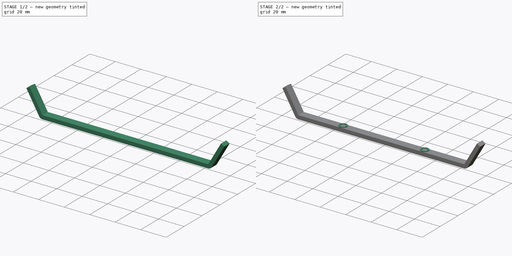
[diagram: build sequence overview — one tinted view per stage of 2, left to right]
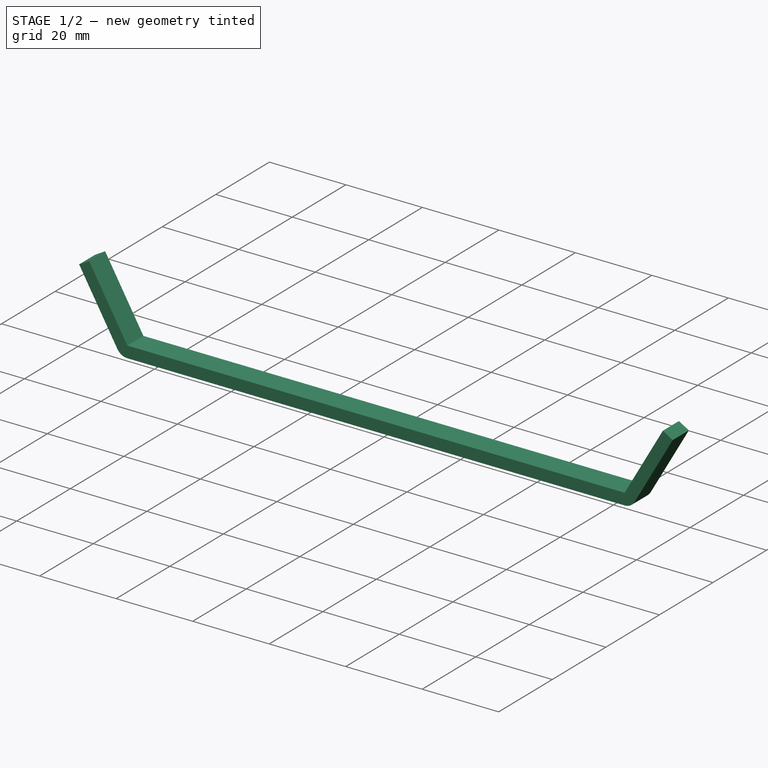
[diagram: stage 1 of 2 — iso view after this stage's code; geometry added in this stage tinted green]
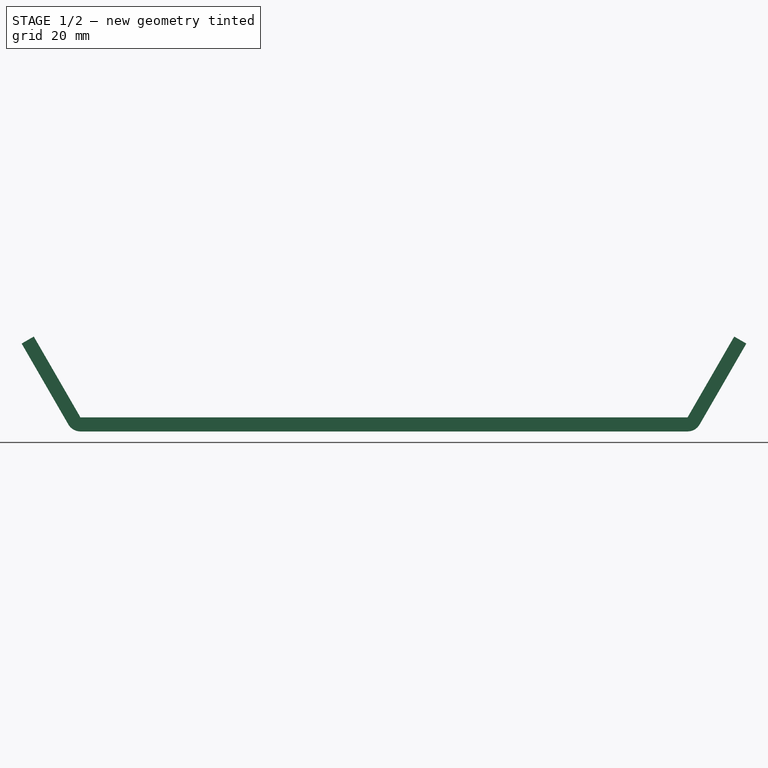
[diagram: stage 1 of 2 — front view after this stage's code; geometry added in this stage tinted green]
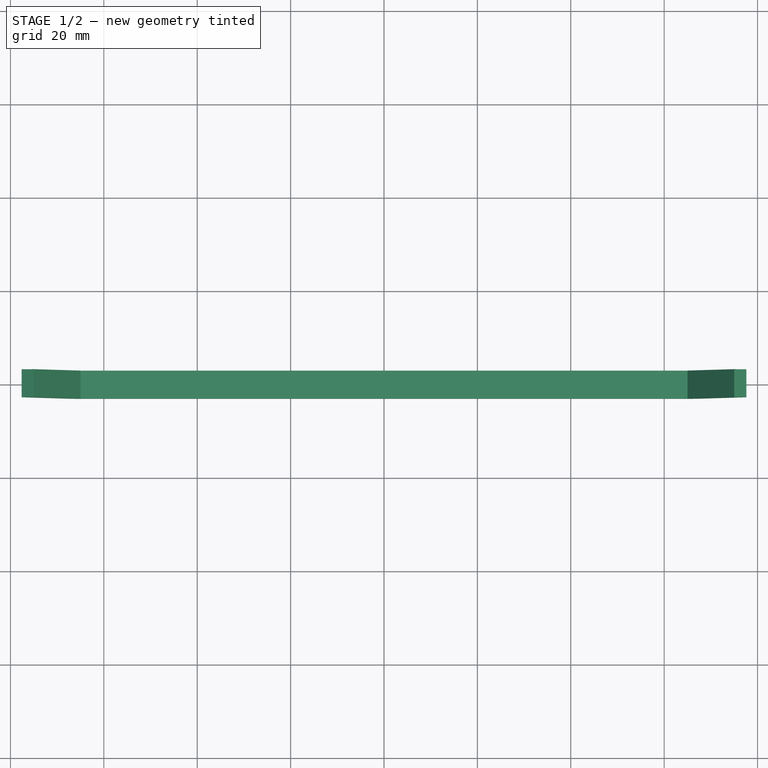
[diagram: stage 1 of 2 — top view after this stage's code; geometry added in this stage tinted green]
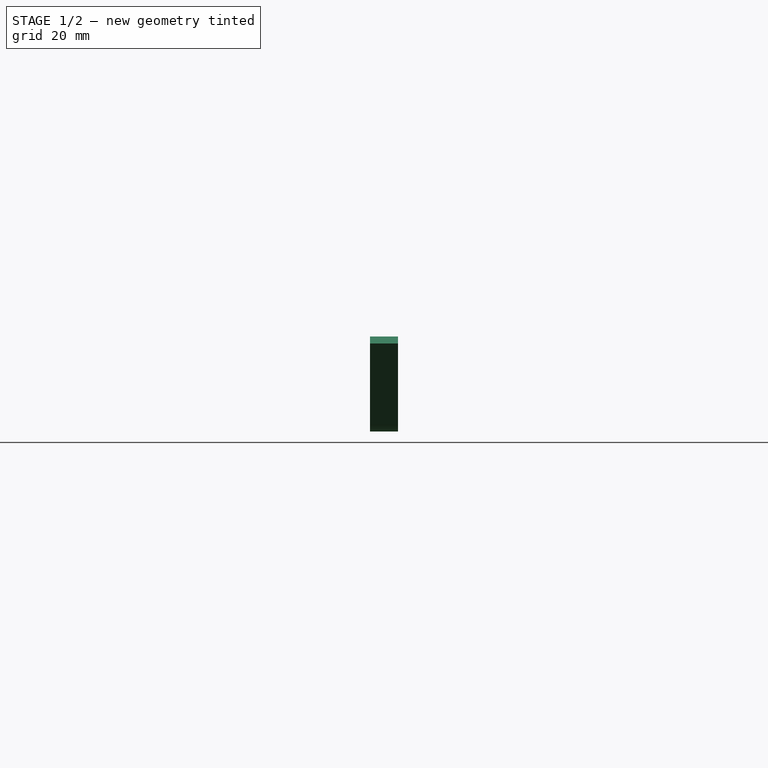
[diagram: stage 1 of 2 — right view after this stage's code; geometry added in this stage tinted green]
FCSTD DOCUMENT  (FreeCAD 0.16R6707 (Git))
Label: FrontBumper
License: All rights reserved
LicenseURL: http://en.wikipedia.org/wiki/All_rights_reserved
objects: Sketcher::SketchObject×2, PartDesign::Pad×2
note: 6 computed .brp shape members not serialized (recipe doc carries the construction recipe); baked Part::Feature solids carry a one-line shape summary decoded from their .brp

FEATURE [Sketcher::SketchObject] Sketch
  Placement = pos=(0,0,0) rot=(-1,0,0;4.71239rad)
  sketch-geometry (10):
    g0: LineSegment StartX=-65 StartY=0 StartZ=0 EndX=65 EndY=0 EndZ=0
    g1: LineSegment StartX=-65 StartY=3 StartZ=0 EndX=65 EndY=3 EndZ=0
    g2: LineSegment StartX=-77.5981 StartY=18.8205 StartZ=0 EndX=-75 EndY=20.3205 EndZ=0
    g3: LineSegment StartX=-75 StartY=20.3205 StartZ=0 EndX=-65 EndY=3 EndZ=0
    g4: LineSegment StartX=-77.5981 StartY=18.8205 StartZ=0 EndX=-67.5981 EndY=1.50002 EndZ=0
    g5: ArcOfCircle CenterX=-65 CenterY=3 CenterZ=0 NormalX=0 NormalY=0 NormalZ=1 Radius=3 StartAngle=3.66518 EndAngle=4.71239
    g6: ArcOfCircle CenterX=65 CenterY=3 CenterZ=0 NormalX=0 NormalY=0 NormalZ=1 Radius=3 StartAngle=4.71239 EndAngle=5.75958
    g7: LineSegment StartX=77.5981 StartY=18.8205 StartZ=0 EndX=67.5981 EndY=1.49999 EndZ=0
    g8: LineSegment StartX=75 StartY=20.3205 StartZ=0 EndX=65 EndY=3 EndZ=0
    g9: LineSegment StartX=77.5981 StartY=18.8205 StartZ=0 EndX=75 EndY=20.3205 EndZ=0
  constraints (30):
    c: Horizontal(g0)
    c: Horizontal(g1)
    c: PointOnObject(g0,g-1)
    c: DistanceY(g0,g1) = 3
    c: Equal(g0,g1)
    c: Symmetric(g0,g0,g-2)
    c: Symmetric(g1,g1,g-2)
    c: Distance(g1) = 130
    c: Coincident(g4,g2)
    c: Coincident(g3,g2)
    c: Perpendicular(g2,g3)
    c: Perpendicular(g2,g4)
    c: Coincident(g3,g1)
    c: Coincident(g5,g1)
    c: Coincident(g5,g0)
    c: Coincident(g5,g4)
    c: Tangent(g5,g4)
    c: Angle(g1,g3) = 2.0944
    c: Distance(g3) = 20
    c: Coincident(g7,g9)
    c: Coincident(g8,g9)
    c: Perpendicular(g9,g8)
    c: Perpendicular(g9,g7)
    c: Coincident(g6,g7)
    c: Tangent(g6,g7)
    c: Distance(g8) = 20
    c: Coincident(g6,g0)
    c: Coincident(g6,g1)
    c: Coincident(g8,g1)
    c: Angle(g8,g1) = 2.0944
FEATURE [PartDesign::Pad] Pad
  Length = 6
  Length2 = 100
  Midplane = true
  Placement = pos=(0,0,0) rot=(-1,0,0;4.71239rad)
  Sketch = -> Sketch
  Type = 0
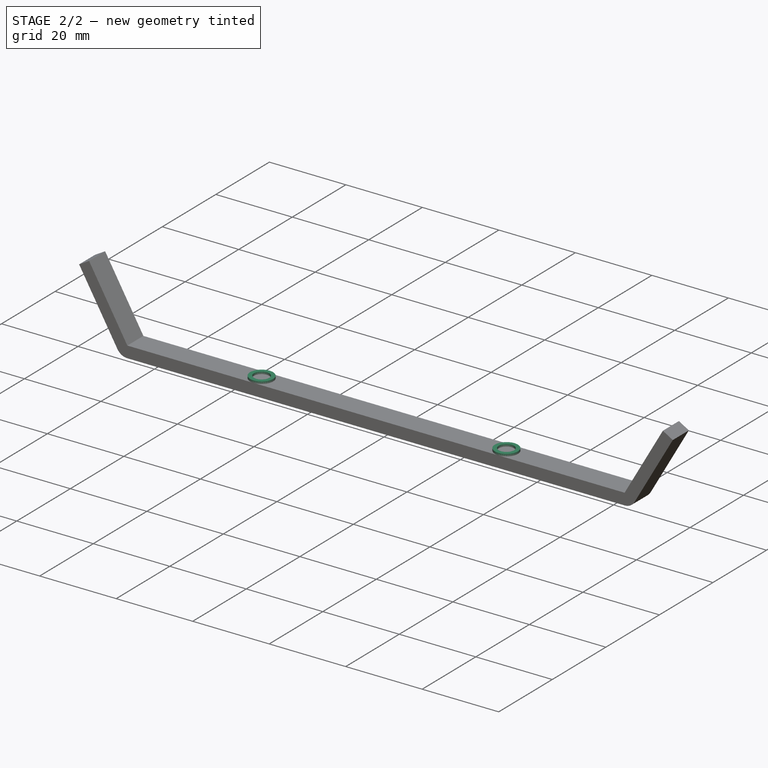
[diagram: stage 2 of 2 — iso view after this stage's code; geometry added in this stage tinted green]
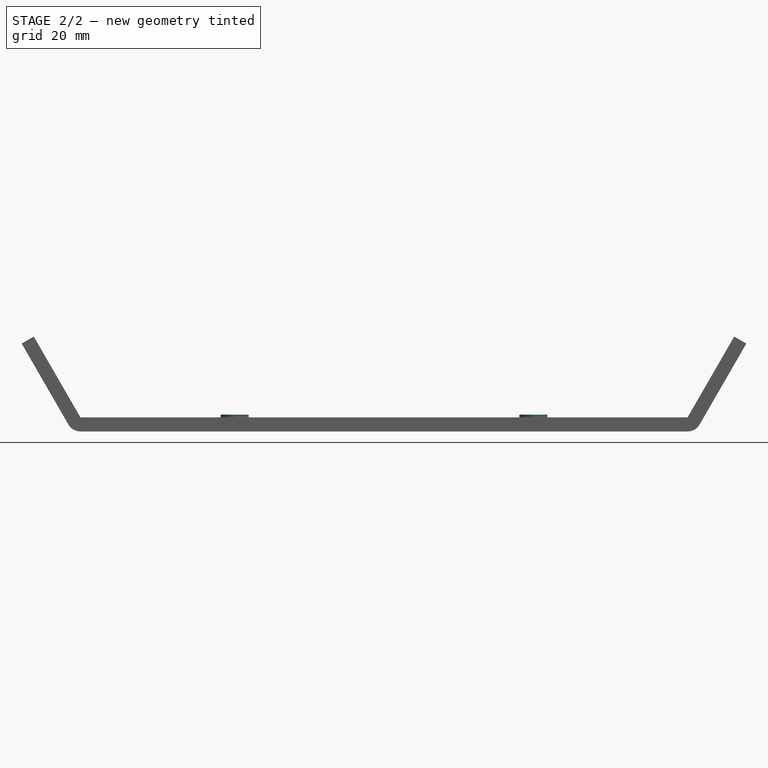
[diagram: stage 2 of 2 — front view after this stage's code; geometry added in this stage tinted green]
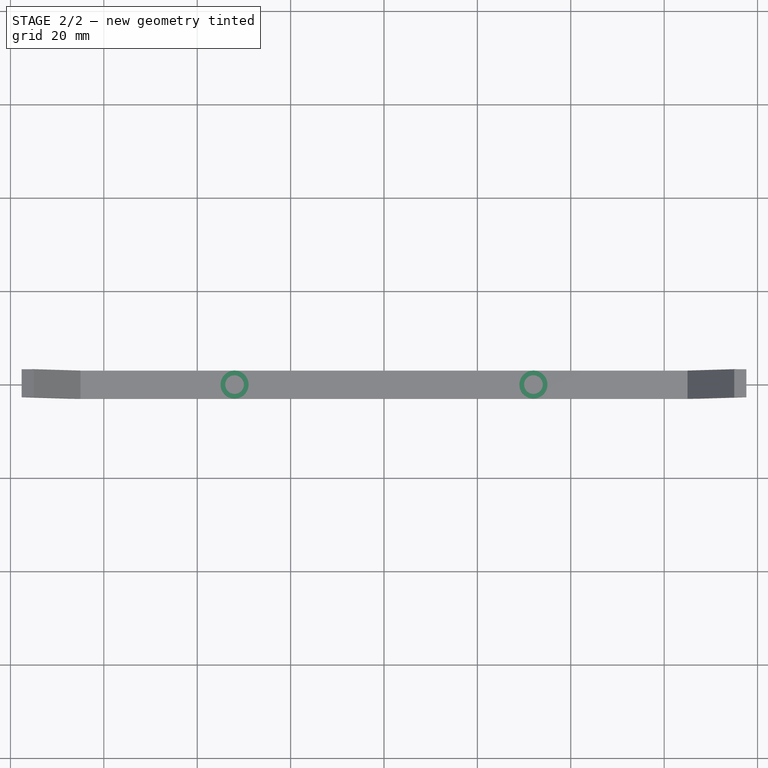
[diagram: stage 2 of 2 — top view after this stage's code; geometry added in this stage tinted green]
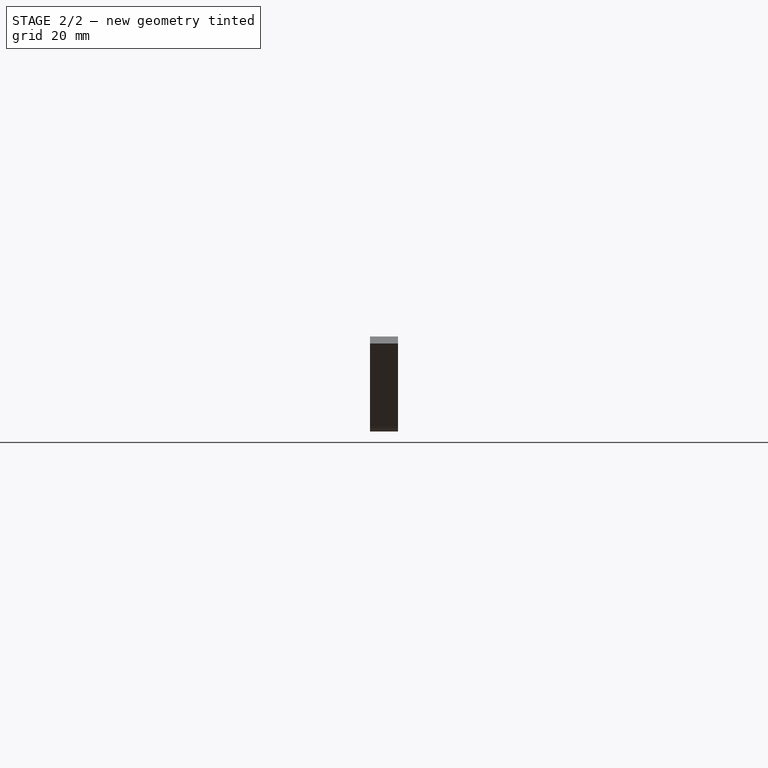
[diagram: stage 2 of 2 — right view after this stage's code; geometry added in this stage tinted green]
FEATURE [Sketcher::SketchObject] Sketch001
  Placement = pos=(0,0,3) rot=(0,0,1;3.14159rad)
  Support = -> Pad [Face8]
  sketch-geometry (4):
    g0: Circle CenterX=-32 CenterY=0 CenterZ=0 NormalX=0 NormalY=0 NormalZ=1 Radius=3
    g1: Circle CenterX=32 CenterY=0 CenterZ=0 NormalX=0 NormalY=0 NormalZ=1 Radius=3
    g2: Circle CenterX=-32 CenterY=0 CenterZ=0 NormalX=0 NormalY=0 NormalZ=1 Radius=2
    g3: Circle CenterX=32 CenterY=0 CenterZ=0 NormalX=0 NormalY=0 NormalZ=1 Radius=2
  constraints (10):
    c: PointOnObject(g0,g-1)
    c: PointOnObject(g1,g-1)
    c: Equal(g0,g1)
    c: Symmetric(g0,g1,g-2)
    c: Radius(g0) = 3
    c: Distance(g0,g1) = 64
    c: Coincident(g2,g0)
    c: Coincident(g3,g1)
    c: Equal(g3,g2)
    c: Radius(g2) = 2
FEATURE [PartDesign::Pad] Pad001
  Length = 0.6
  Length2 = 100
  Placement = pos=(0,0,0) rot=(-1,0,0;4.71239rad)
  Sketch = -> Sketch001
  Type = 0
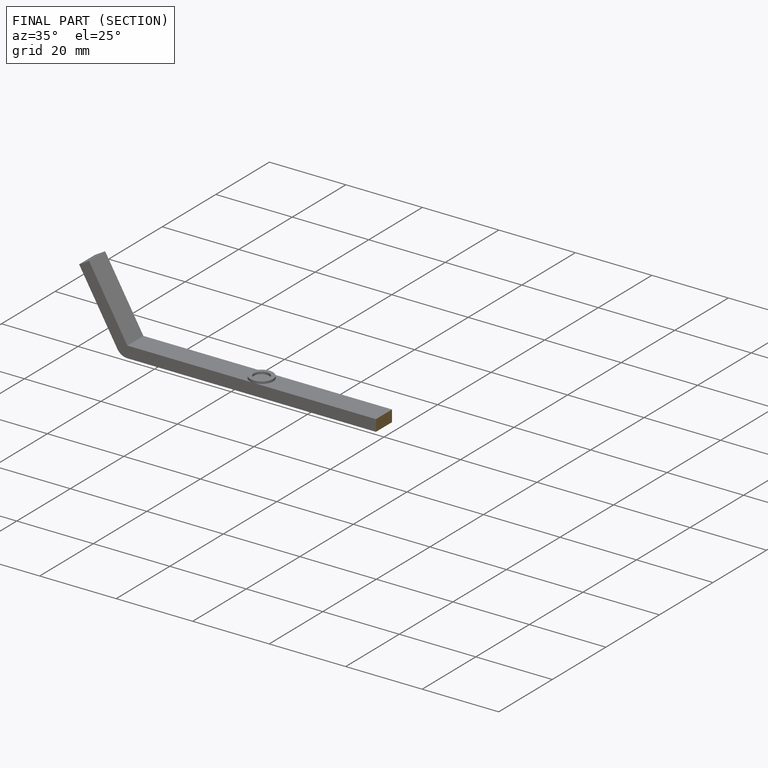
[diagram: finished part — half-section view (interior)]
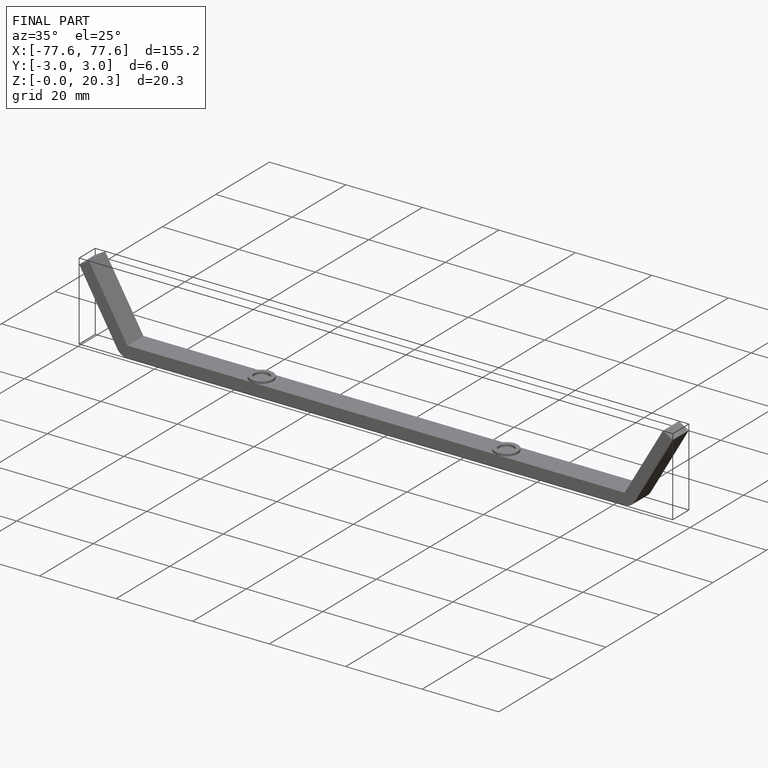
[diagram: finished part — iso view with bounding-box wireframe]
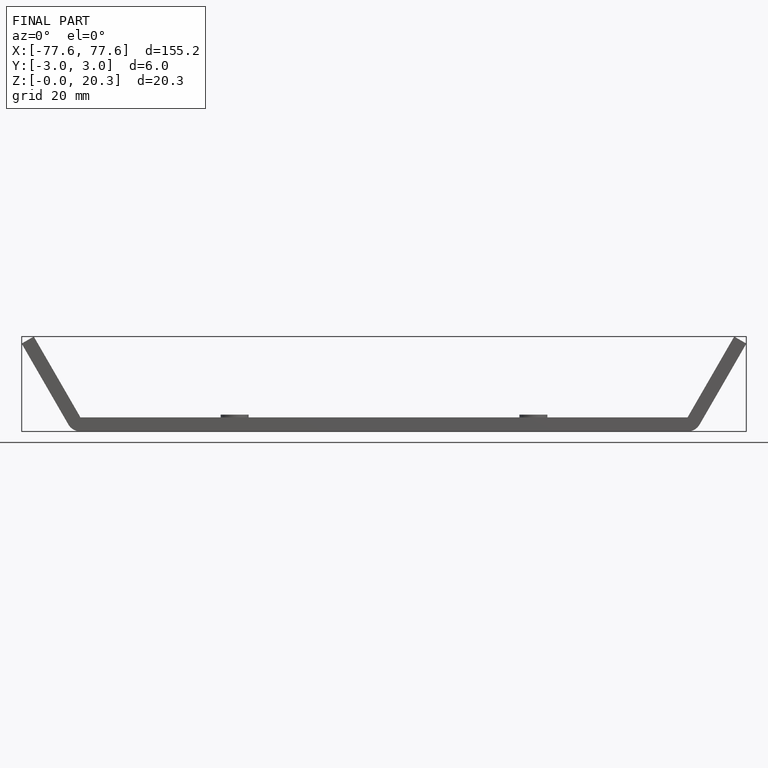
[diagram: finished part — front view with bounding-box wireframe]
